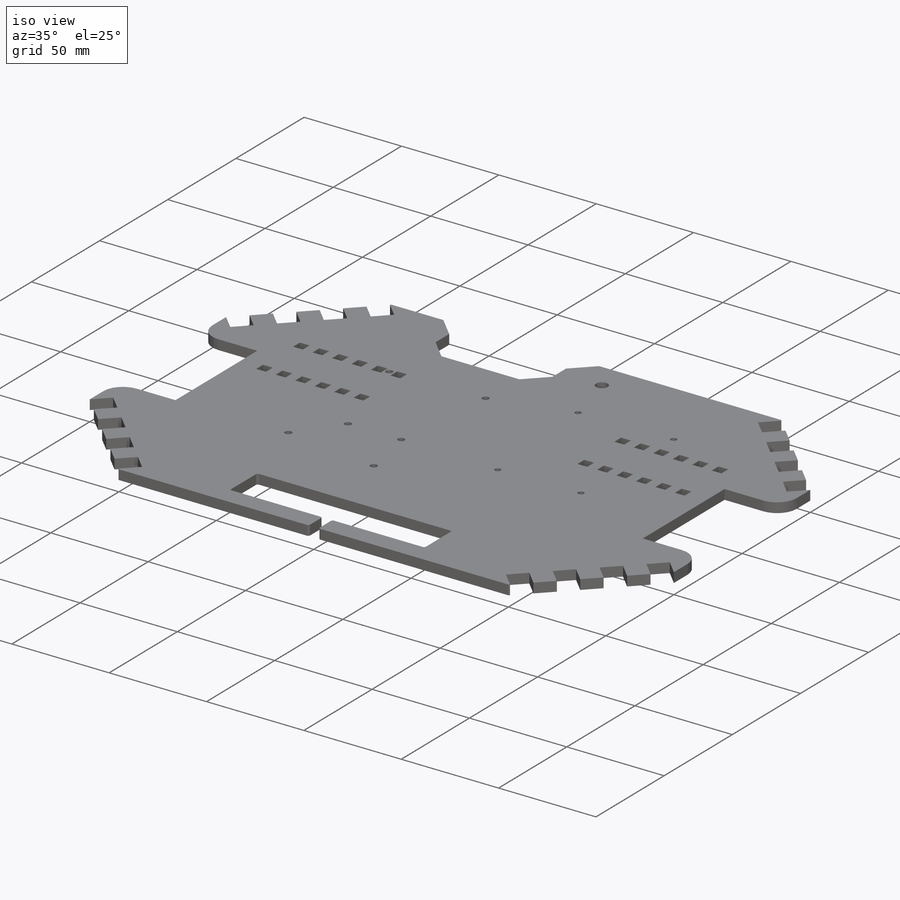
[diagram: iso view]
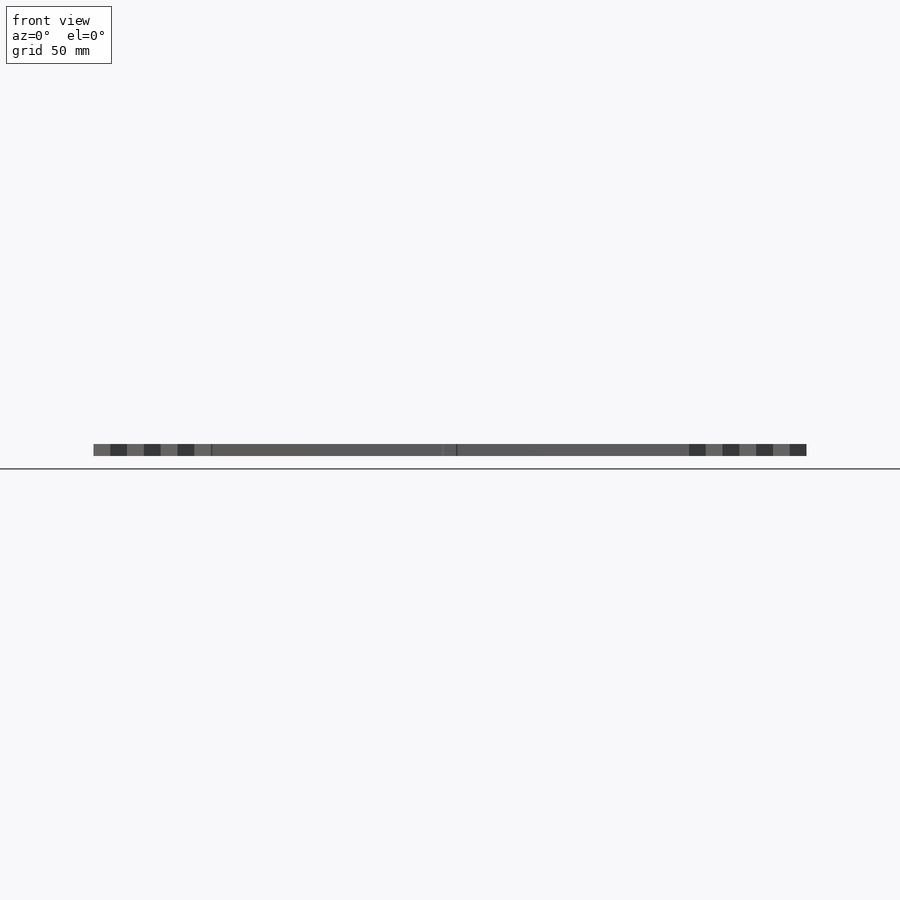
[diagram: front view]
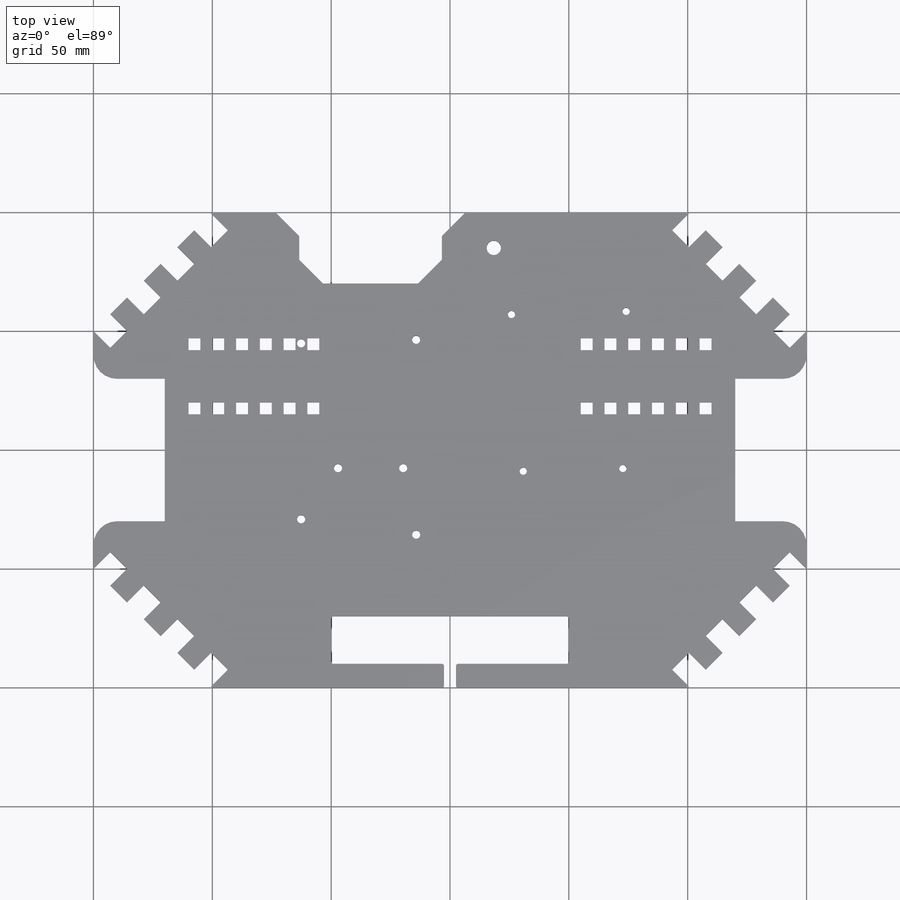
[diagram: top view]
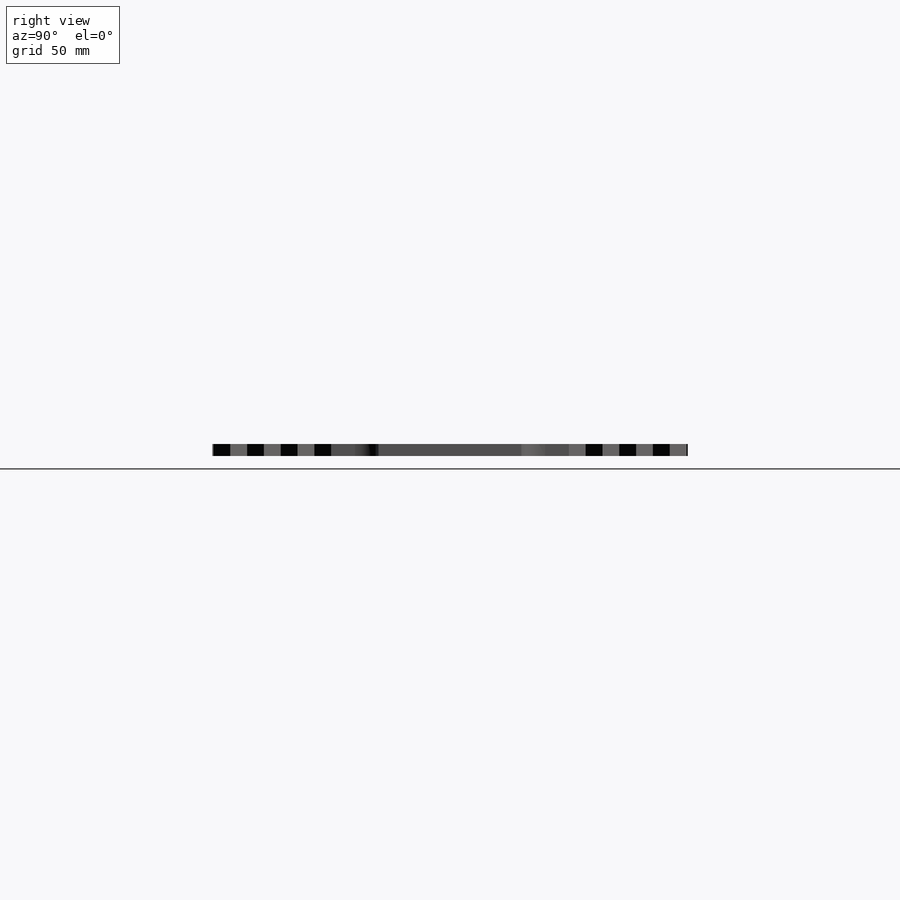
[diagram: right view]
SOLIDWORKS PART (.sldprt)
format: sldprt  version: not decoded by parser v0  size: 890,368 bytes
history: native  units: mm
features: sketch x11, cut_extrude x10, plane x3, mirror x2, material x1, extrude x1, pattern_linear x1, chamfer x1, fillet x1 (+10 scaffold rows collapsed)
feature tree (41):
  scaffold x10  (default folders/planes/origin — collapsed)
  material  "Balsa"
  plane  "Plan de face"
  plane  "Plan de dessus"
  plane  "Plan de droite"
  sketch  "Esquisse1"  dims[D1=300.0mm D2=200.0mm D3=150.0mm D4=100.0mm]
  extrude  "Boss.-Extru.1"  Depth=5mm
  sketch  "Esquisse2"  dims[D1=50.0mm D2=50.0mm D3=50.0mm D4=50.0mm D5=50.0mm D6=50.0mm D7=50.0mm D8=50.0mm]
  cut_extrude  "Enlèv. mat.-Extru.1"  Depth=10mm
  sketch  "Esquisse6"  dims[D1=10.0mm D2=10.0mm D3=0.0mm]
  cut_extrude  "Enlèv. mat.-Extru.5"  Depth=10mm
  pattern_linear  "Répétition linéaire2"  Count1=4 Count2=1 Spacing1=20mm Spacing2=10mm
  mirror  "Symétrie1"
  sketch  "Esquisse11"  dims[D1=30.0mm D2=15.0mm D3=42.5mm]
  cut_extrude  "Enlèv. mat.-Extru.10"  Depth=10mm
  mirror  "Symétrie2"
  sketch  "Esquisse17"  dims[D1=60.0mm D2=30.0mm D3=30.0mm]
  cut_extrude  "Enlèv. mat.-Extru.16"  Depth=10mm
  chamfer  "Chanfrein1"  Distance=10mm Angle=45deg
  sketch  "Esquisse18"  dims[D1=60.0mm D2=30.0mm D3=20.0mm D4=25.0mm]
  cut_extrude  "Enlèv. mat.-Extru.17"  Depth=10mm
  sketch  "Esquisse20"  dims[D1=6.0mm D2=15.0mm D3=75.0mm]
  cut_extrude  "Enlèv. mat.-Extru.19"  Depth=10mm
  sketch  "Esquisse21"  dims[c1.D1=5.0mm c1.D2=5.0mm c1.D3=80.0mm c1.D4=40.0mm c1.D6=5.0mm c1.D7=5.0mm c1.D8=22.0mm c2.D3=53.0mm c2.D5=6.0 c2.D9=6.0]
  cut_extrude  "Enlèv. mat.-Extru.20"  Depth=10mm
  sketch  "Esquisse22"  dims[D1=100.0mm D2=20.0mm D3=50.0mm D4=10.0mm D5=97.5mm D6=97.5mm]
  cut_extrude  "Enlèv. mat.-Extru.21"  Depth=10mm
  fillet  "Congé1"  Radius=1mm
  sketch  "Esquisse23"  dims[c1.D2=3.0mm c1.D3=3.0mm c1.D5=3.0mm c1.D6=3.0mm c1.D15=2.5mm c1.D16=2.5mm c1.D17=2.5mm c1.D18=2.5mm c2.D17=3.0mm c2.D18=3.0mm c2.D19=3.0mm c2.D20=3.0mm c2.D1=102.0mm c2.D4=54.0mm c2.D7=15.0mm c2.D8=14.0mm c2.D9=5.0mm c2.D10=12.0mm c2.D11=3.0mm c2.D12=3.0mm c2.D13=2.5mm c2.D14=2.5mm c3.D19=48.5mm c3.D20=7.0mm c3.D21=96.0mm c3.D22=0.0mm c3.D23=48.5mm c4.D19=48.5mm c4.D24=75.0mm c4.D25=14.0mm c4.D15=38.0mm c4.D16=55.0mm]
  cut_extrude  "Enlèv. mat.-Extru.23"  Depth=10mm
  sketch  "Esquisse24"
  cut_extrude  "Enlèv. mat.-Extru.24"  Depth=10mm Congé2=0deg
decode coverage: 24 of 27 modeling features carry decoded parameters
note: suppression state not decoded; provenance and decode notes live in map.json
